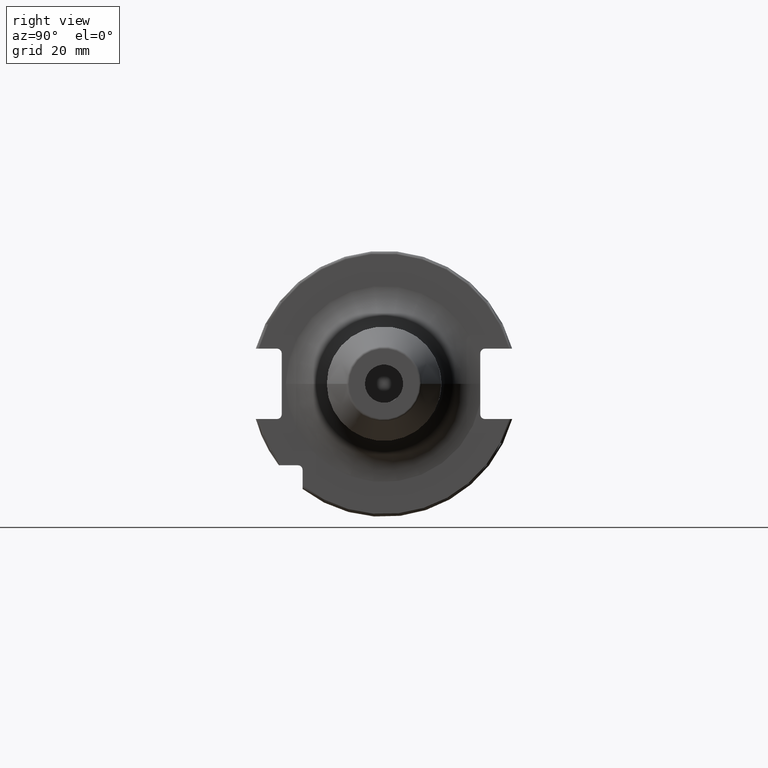
[diagram: clean part render]
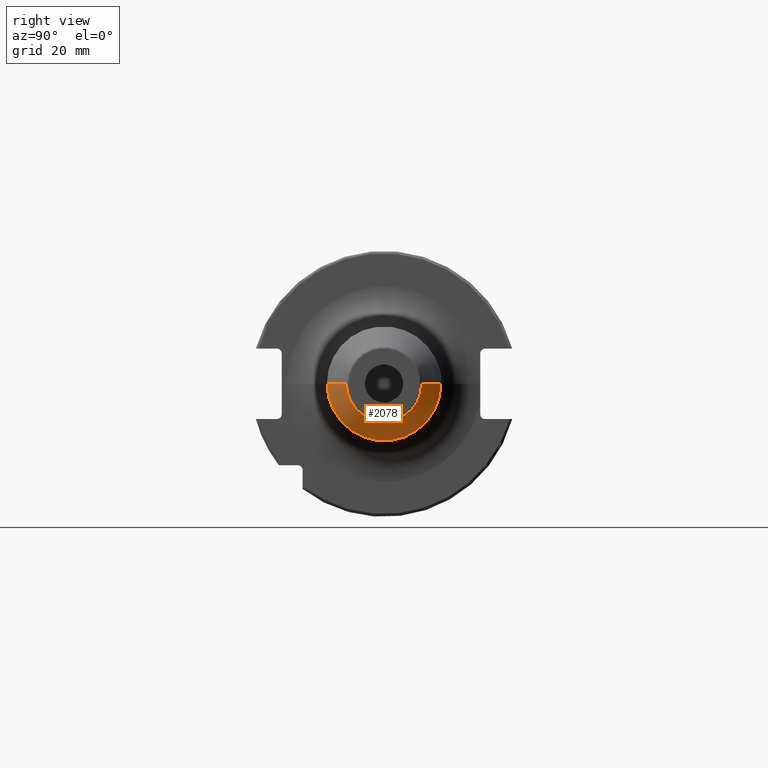
[diagram: same view with one face highlighted and labeled with its STEP entity id]
A machine part, right view. The second image highlights one B-rep face of the part: STEP entity #2078.
In plain terms, the highlighted conical surface has half-angle 30 deg.
Its self-contained STEP definition (entity closure, byte-faithful):
#342=CARTESIAN_POINT('',(1.172320508076E2,0.E0,0.E0));
#343=DIRECTION('',(-1.E0,0.E0,0.E0));
#344=DIRECTION('',(0.E0,1.E0,0.E0));
#345=AXIS2_PLACEMENT_3D('',#342,#343,#344);
#347=DIRECTION('',(-8.660254037844E-1,-5.E-1,1.561626222061E-13));
#348=VECTOR('',#347,1.416580753731E1);
#349=CARTESIAN_POINT('',(1.295E2,-1.378312163513E1,2.107165525775E-12));
#350=LINE('',#349,#348);
#351=CARTESIAN_POINT('',(1.295E2,0.E0,0.E0));
#352=DIRECTION('',(-1.E0,0.E0,0.E0));
#353=DIRECTION('',(0.E0,1.E0,0.E0));
#354=AXIS2_PLACEMENT_3D('',#351,#352,#353);
#356=DIRECTION('',(-8.660254037844E-1,5.E-1,-1.559170936960E-13));
#357=VECTOR('',#356,1.416580753731E1);
#358=CARTESIAN_POINT('',(1.295E2,1.378312163513E1,-2.110651033828E-12));
#359=LINE('',#358,#357);
#1660=CARTESIAN_POINT('',(1.172320508076E2,2.086602540378E1,0.E0));
#1661=CARTESIAN_POINT('',(1.172320508076E2,-2.086602540378E1,0.E0));
#1662=VERTEX_POINT('',#1660);
#1663=VERTEX_POINT('',#1661);
#1664=CARTESIAN_POINT('',(1.295E2,1.378312163513E1,0.E0));
#1665=CARTESIAN_POINT('',(1.295E2,-1.378312163513E1,0.E0));
#1666=VERTEX_POINT('',#1664);
#1667=VERTEX_POINT('',#1665);
#2064=CARTESIAN_POINT('',(1.233660254038E2,0.E0,0.E0));
#2065=DIRECTION('',(-1.E0,0.E0,0.E0));
#2066=DIRECTION('',(0.E0,1.E0,0.E0));
#2067=AXIS2_PLACEMENT_3D('',#2064,#2065,#2066);
#2068=CONICAL_SURFACE('',#2067,1.732457351946E1,3.E1);
#2070=ORIENTED_EDGE('',*,*,#2069,.T.);
#2072=ORIENTED_EDGE('',*,*,#2071,.F.);
#2073=ORIENTED_EDGE('',*,*,#2054,.F.);
#2075=ORIENTED_EDGE('',*,*,#2074,.T.);
#2076=EDGE_LOOP('',(#2070,#2072,#2073,#2075));
#2077=FACE_OUTER_BOUND('',#2076,.F.);
#2078=ADVANCED_FACE('',(#2077),#2068,.T.);
#346=CIRCLE('',#345,2.086602540378E1);
#355=CIRCLE('',#354,1.378312163513E1);
#2054=EDGE_CURVE('',#1666,#1667,#355,.T.);
#2069=EDGE_CURVE('',#1662,#1663,#346,.T.);
#2071=EDGE_CURVE('',#1667,#1663,#350,.T.);
#2074=EDGE_CURVE('',#1666,#1662,#359,.T.);